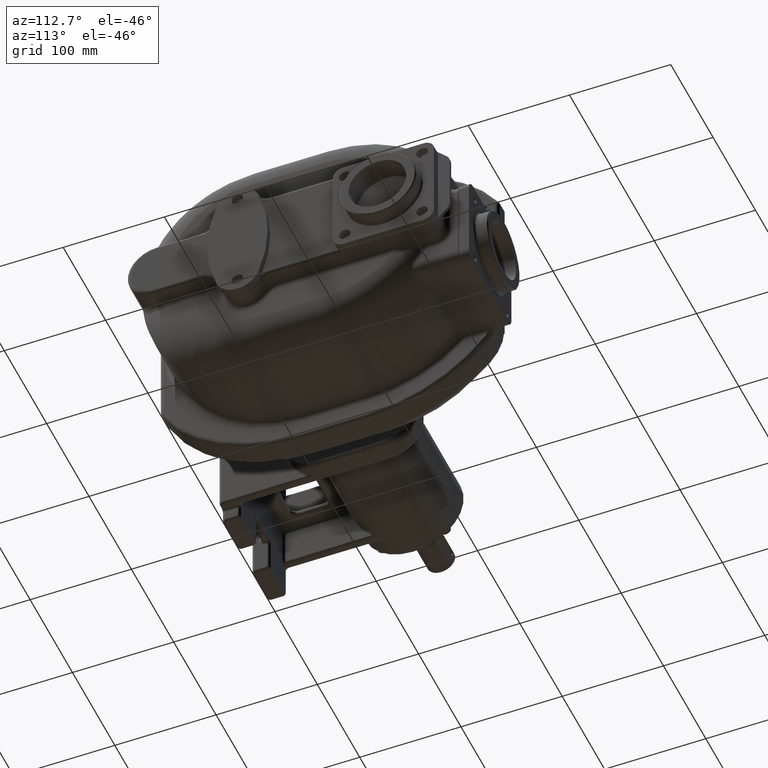
[diagram: clean part render]
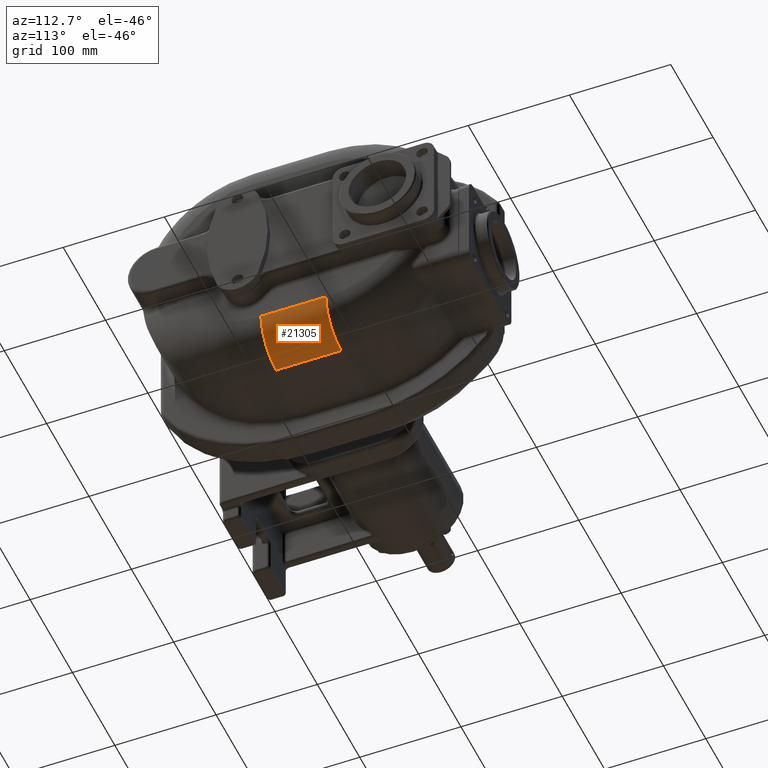
[diagram: same view with one face highlighted and labeled with its STEP entity id]
A machine part, auxiliary view. The second image highlights one B-rep face of the part: STEP entity #21305.
In plain terms, the highlighted cylindrical surface (partial cylindrical patch) has radius 36 mm, axis along (0, 1, 0).
Its self-contained STEP definition (entity closure, byte-faithful):
#29=DIRECTION('',(0.E0,1.E0,0.E0));
#30=VECTOR('',#29,6.4E1);
#31=CARTESIAN_POINT('',(8.4E1,5.E0,-9.8E1));
#32=LINE('',#31,#30);
#647=DIRECTION('',(0.E0,1.E0,0.E0));
#648=VECTOR('',#647,6.4E1);
#649=CARTESIAN_POINT('',(4.8E1,5.E0,-1.34E2));
#650=LINE('',#649,#648);
#775=CARTESIAN_POINT('',(4.8E1,6.9E1,-9.8E1));
#776=DIRECTION('',(0.E0,1.E0,0.E0));
#777=DIRECTION('',(1.E0,0.E0,0.E0));
#778=AXIS2_PLACEMENT_3D('',#775,#776,#777);
#8335=CARTESIAN_POINT('',(4.8E1,5.E0,-9.8E1));
#8336=DIRECTION('',(0.E0,1.E0,0.E0));
#8337=DIRECTION('',(1.E0,0.E0,0.E0));
#8338=AXIS2_PLACEMENT_3D('',#8335,#8336,#8337);
#8354=CARTESIAN_POINT('',(8.4E1,5.E0,-9.8E1));
#8355=CARTESIAN_POINT('',(8.4E1,6.9E1,-9.8E1));
#8356=VERTEX_POINT('',#8354);
#8357=VERTEX_POINT('',#8355);
#8358=CARTESIAN_POINT('',(4.8E1,5.E0,-1.34E2));
#8359=CARTESIAN_POINT('',(4.8E1,6.9E1,-1.34E2));
#8360=VERTEX_POINT('',#8358);
#8361=VERTEX_POINT('',#8359);
#21294=CARTESIAN_POINT('',(4.8E1,4.9781564E0,-9.8E1));
#21295=DIRECTION('',(0.E0,1.E0,0.E0));
#21296=DIRECTION('',(1.E0,0.E0,0.E0));
#21297=AXIS2_PLACEMENT_3D('',#21294,#21295,#21296);
#21298=CYLINDRICAL_SURFACE('',#21297,3.6E1);
#21299=ORIENTED_EDGE('',*,*,#9739,.T.);
#21300=ORIENTED_EDGE('',*,*,#11515,.T.);
#21301=ORIENTED_EDGE('',*,*,#11481,.F.);
#21302=ORIENTED_EDGE('',*,*,#9845,.F.);
#21303=EDGE_LOOP('',(#21299,#21300,#21301,#21302));
#21304=FACE_OUTER_BOUND('',#21303,.F.);
#21305=ADVANCED_FACE('',(#21304),#21298,.T.);
#779=CIRCLE('',#778,3.6E1);
#8339=CIRCLE('',#8338,3.6E1);
#9739=EDGE_CURVE('',#8356,#8357,#32,.T.);
#9845=EDGE_CURVE('',#8356,#8360,#8339,.T.);
#11481=EDGE_CURVE('',#8360,#8361,#650,.T.);
#11515=EDGE_CURVE('',#8357,#8361,#779,.T.);